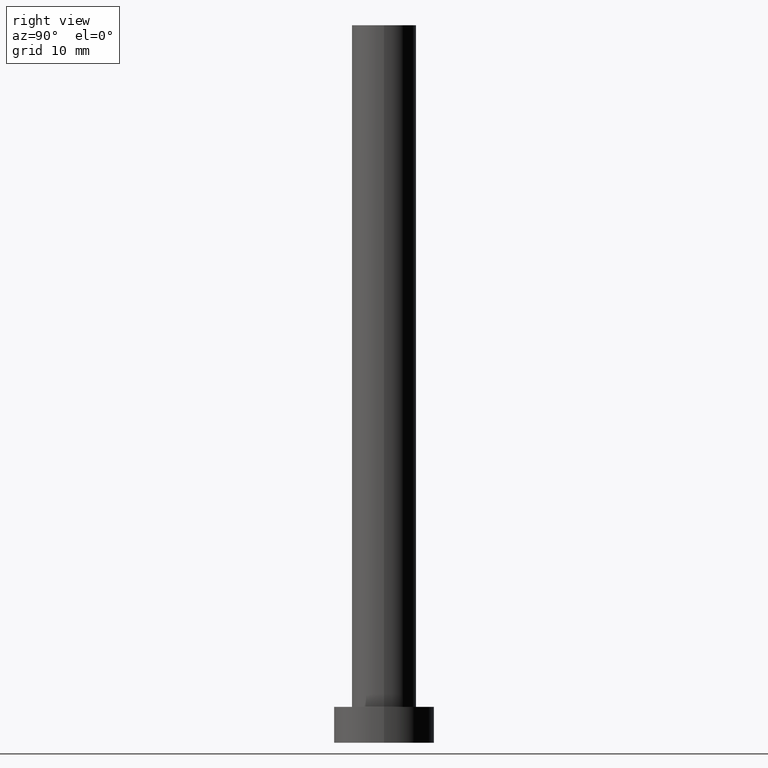
[diagram: clean part render]
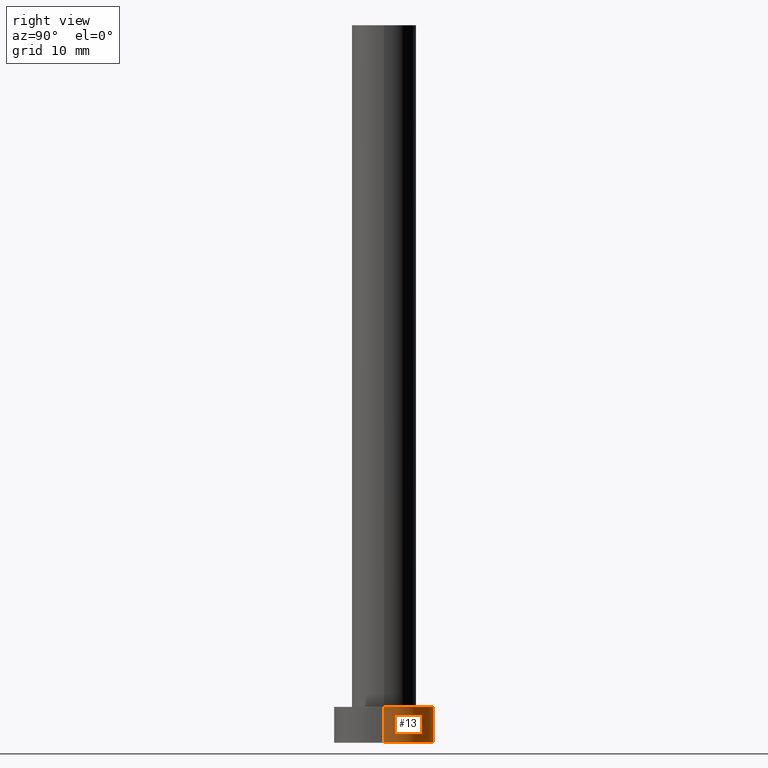
[diagram: same view with one face highlighted and labeled with its STEP entity id]
A machine part, right view. The second image highlights one B-rep face of the part: STEP entity #13.
In plain terms, the highlighted cylindrical surface (partial cylindrical patch) has radius 7 mm, axis along (-0, -0, -1).
Its self-contained STEP definition (entity closure, byte-faithful):
#3 = AXIS2_PLACEMENT_3D ( 'NONE', #10, #84, #91 ) ;
#7 = CARTESIAN_POINT ( 'NONE',  ( 7.000000000000000000, 8.572527594031473190E-16, 5.000000000000000000 ) ) ;
#10 = CARTESIAN_POINT ( 'NONE',  ( 0.000000000000000000, 0.000000000000000000, 0.000000000000000000 ) ) ;
#11 = VERTEX_POINT ( 'NONE', #186 ) ;
#13 = ADVANCED_FACE ( 'NONE', ( #54 ), #205, .T. ) ;
#16 = DIRECTION ( 'NONE',  ( -0.000000000000000000, -0.000000000000000000, -1.000000000000000000 ) ) ;
#20 = ORIENTED_EDGE ( 'NONE', *, *, #239, .T. ) ;
#31 = EDGE_LOOP ( 'NONE', ( #146, #111, #20, #149 ) ) ;
#33 = DIRECTION ( 'NONE',  ( -0.000000000000000000, -0.000000000000000000, -1.000000000000000000 ) ) ;
#43 = CIRCLE ( 'NONE', #3, 7.000000000000000000 ) ;
#54 = FACE_OUTER_BOUND ( 'NONE', #31, .T. ) ;
#55 = VERTEX_POINT ( 'NONE', #201 ) ;
#84 = DIRECTION ( 'NONE',  ( 0.000000000000000000, 0.000000000000000000, 1.000000000000000000 ) ) ;
#89 = CARTESIAN_POINT ( 'NONE',  ( -7.000000000000000000, 0.000000000000000000, 5.000000000000000000 ) ) ;
#90 = VERTEX_POINT ( 'NONE', #7 ) ;
#91 = DIRECTION ( 'NONE',  ( 1.000000000000000000, 0.000000000000000000, 0.000000000000000000 ) ) ;
#95 = DIRECTION ( 'NONE',  ( 0.000000000000000000, 0.000000000000000000, 1.000000000000000000 ) ) ;
#101 = EDGE_CURVE ( 'NONE', #90, #163, #118, .T. ) ;
#106 = EDGE_CURVE ( 'NONE', #90, #11, #150, .T. ) ;
#111 = ORIENTED_EDGE ( 'NONE', *, *, #101, .T. ) ;
#112 = DIRECTION ( 'NONE',  ( -0.000000000000000000, -0.000000000000000000, -1.000000000000000000 ) ) ;
#118 = LINE ( 'NONE', #193, #236 ) ;
#119 = VECTOR ( 'NONE', #112, 1000.000000000000000 ) ;
#124 = AXIS2_PLACEMENT_3D ( 'NONE', #215, #95, #227 ) ;
#132 = LINE ( 'NONE', #89, #119 ) ;
#146 = ORIENTED_EDGE ( 'NONE', *, *, #106, .F. ) ;
#149 = ORIENTED_EDGE ( 'NONE', *, *, #160, .F. ) ;
#150 = CIRCLE ( 'NONE', #124, 7.000000000000000000 ) ;
#160 = EDGE_CURVE ( 'NONE', #11, #55, #132, .T. ) ;
#163 = VERTEX_POINT ( 'NONE', #246 ) ;
#173 = CARTESIAN_POINT ( 'NONE',  ( 0.000000000000000000, 0.000000000000000000, 5.000000000000000000 ) ) ;
#186 = CARTESIAN_POINT ( 'NONE',  ( -7.000000000000000000, 0.000000000000000000, 5.000000000000000000 ) ) ;
#187 = AXIS2_PLACEMENT_3D ( 'NONE', #173, #33, #221 ) ;
#193 = CARTESIAN_POINT ( 'NONE',  ( 7.000000000000000000, 8.572527594031473190E-16, 5.000000000000000000 ) ) ;
#201 = CARTESIAN_POINT ( 'NONE',  ( -7.000000000000000000, 0.000000000000000000, 0.000000000000000000 ) ) ;
#205 = CYLINDRICAL_SURFACE ( 'NONE', #187, 7.000000000000000000 ) ;
#215 = CARTESIAN_POINT ( 'NONE',  ( 0.000000000000000000, 0.000000000000000000, 5.000000000000000000 ) ) ;
#221 = DIRECTION ( 'NONE',  ( -1.000000000000000000, 0.000000000000000000, 0.000000000000000000 ) ) ;
#227 = DIRECTION ( 'NONE',  ( 1.000000000000000000, 0.000000000000000000, 0.000000000000000000 ) ) ;
#236 = VECTOR ( 'NONE', #16, 1000.000000000000000 ) ;
#239 = EDGE_CURVE ( 'NONE', #163, #55, #43, .T. ) ;
#246 = CARTESIAN_POINT ( 'NONE',  ( 7.000000000000000000, 8.572527594031473190E-16, 0.000000000000000000 ) ) ;